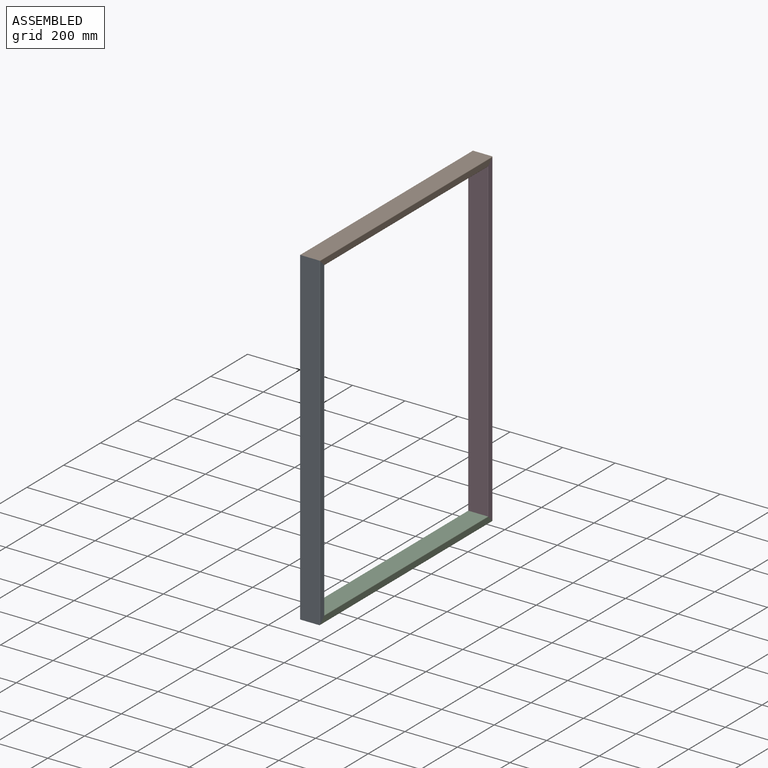
[diagram: assembled view]
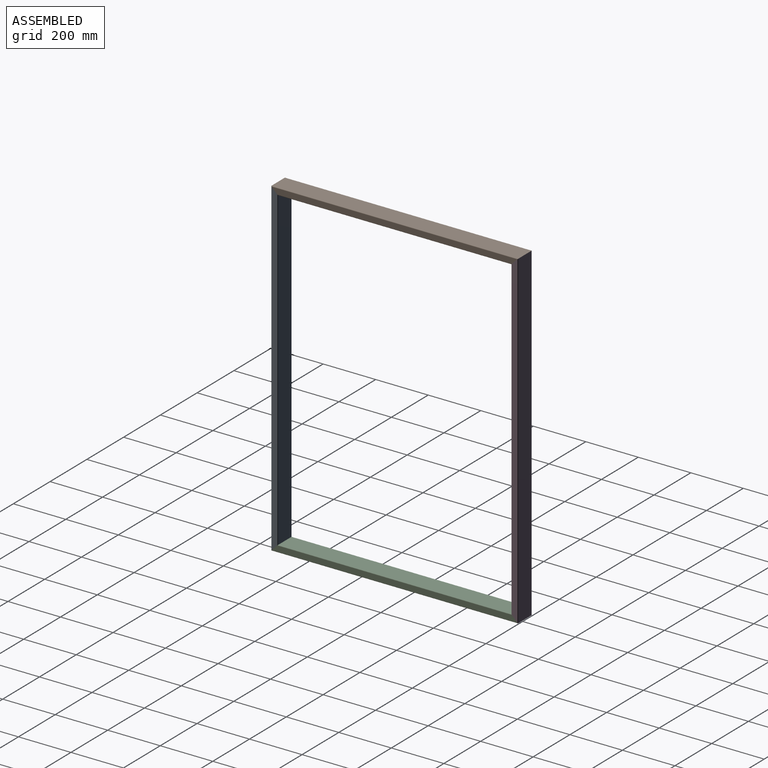
[diagram: assembled view, second angle]
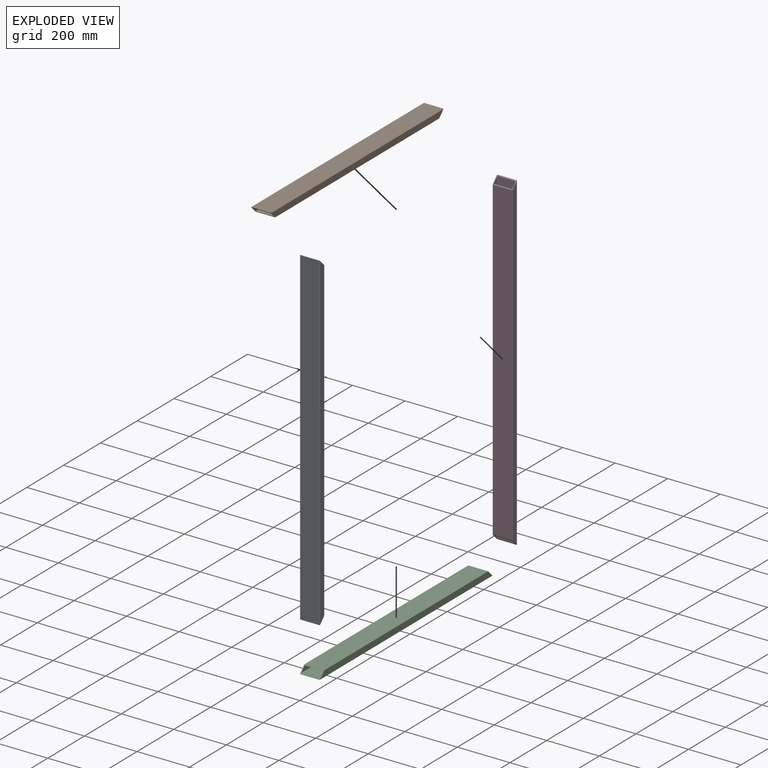
[diagram: exploded view]
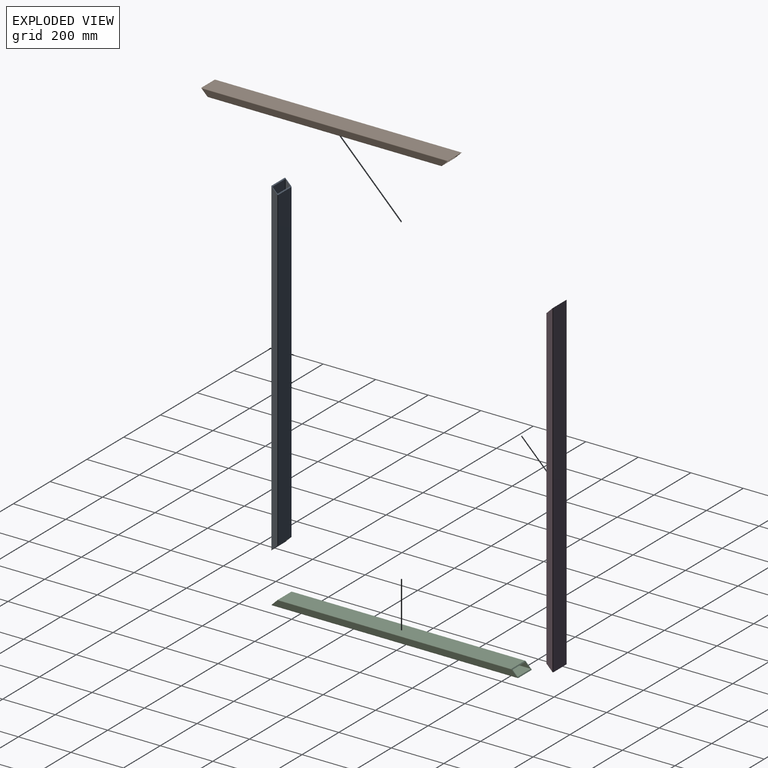
[diagram: exploded view, second angle]
ASSEMBLY  parts=4 mates=3
PART A: 18 faces, bbox 76.2x1255x25.4 mm
  f0: cylinder r=1.91mm len=1208.01mm, axis (0,-1,0), area 3607.6mm2, adj f2,f6,f8,f9
  f1: cylinder r=1.91mm len=1255mm, axis (0,-1,0), area 3751.3mm2, adj f2,f7,f8,f9
  f2: plane 1251.19x21.59mm, normal (1,0,0), area 26547.1mm2, adj f0,f1,f8,f9
  f3: cylinder r=1.91mm len=1255mm, axis (0,-1,0), area 3751.3mm2, adj f4,f7,f8,f9
  f4: plane 1251.19x21.59mm, normal (-1,0,0), area 26547.1mm2, adj f3,f5,f8,f9
  f5: cylinder r=1.91mm len=1208.01mm, axis (0,-1,0), area 3607.6mm2, adj f4,f6,f8,f9
  f6: plane 1204.2x72.39mm, normal (0,0,1), area 87172mm2, adj f0,f5,f8,f9
  f7: plane 1255x72.39mm, normal (0,0,-1), area 90849.4mm2, adj f1,f3,f8,f9
  f8: plane 76.2x25.4mm, normal (0,0.71,0.71), area 823.3mm2, adj f0,f1,f2,f3,f4,f5,f6,f7
  f9: plane 76.2x25.4mm, normal (0,-0.71,0.71), area 823.3mm2, adj f0,f1,f2,f3,f4,f5,f6,f7
  f10: cylinder r=1.91mm len=1214.11mm, axis (0,-1,0), area 3625.8mm2, adj f8,f9,f11,f17
  f11: plane 1210.3x66.29mm, normal (0,0,-1), area 80235.4mm2, adj f8,f9,f10,f12
  f12: cylinder r=1.91mm len=1214.11mm, axis (0,-1,0), area 3625.8mm2, adj f8,f9,f11,f13
  f13: plane 1245.09x15.49mm, normal (-1,0,0), area 19051.4mm2, adj f8,f9,f12,f14
  f14: cylinder r=1.91mm len=1248.9mm, axis (0,-1,0), area 3733mm2, adj f8,f9,f13,f15
  f15: plane 1248.9x66.29mm, normal (0,0,1), area 82794.8mm2, adj f8,f9,f14,f16
  f16: cylinder r=1.91mm len=1248.9mm, axis (0,-1,0), area 3733mm2, adj f8,f9,f15,f17
  f17: plane 1245.09x15.49mm, normal (1,0,0), area 19051.4mm2, adj f8,f9,f10,f16
PART B: 18 faces, bbox 76.2x939.8x25.4 mm
  f0: cylinder r=1.91mm len=892.81mm, axis (0,-1,0), area 2664.4mm2, adj f2,f6,f8,f9
  f1: cylinder r=1.91mm len=939.8mm, axis (0,-1,0), area 2808.1mm2, adj f2,f7,f8,f9
  f2: plane 935.99x21.59mm, normal (1,0,0), area 19741.9mm2, adj f0,f1,f8,f9
  f3: cylinder r=1.91mm len=939.8mm, axis (0,-1,0), area 2808.1mm2, adj f4,f7,f8,f9
  f4: plane 935.99x21.59mm, normal (-1,0,0), area 19741.9mm2, adj f3,f5,f8,f9
  f5: cylinder r=1.91mm len=892.81mm, axis (0,-1,0), area 2664.4mm2, adj f4,f6,f8,f9
  f6: plane 889x72.39mm, normal (0,0,1), area 64354.7mm2, adj f0,f5,f8,f9
  f7: plane 939.8x72.39mm, normal (0,0,-1), area 68032.1mm2, adj f1,f3,f8,f9
  f8: plane 76.2x25.4mm, normal (0,0.71,0.71), area 823.3mm2, adj f0,f1,f2,f3,f4,f5,f6,f7
  f9: plane 76.2x25.4mm, normal (0,-0.71,0.71), area 823.3mm2, adj f0,f1,f2,f3,f4,f5,f6,f7
  f10: cylinder r=1.91mm len=898.91mm, axis (0,-1,0), area 2682.6mm2, adj f8,f9,f11,f17
  f11: plane 895.1x66.29mm, normal (0,0,-1), area 59339.5mm2, adj f8,f9,f10,f12
  f12: cylinder r=1.91mm len=898.91mm, axis (0,-1,0), area 2682.6mm2, adj f8,f9,f11,f13
  f13: plane 929.89x15.49mm, normal (-1,0,0), area 14167.7mm2, adj f8,f9,f12,f14
  f14: cylinder r=1.91mm len=933.7mm, axis (0,-1,0), area 2789.8mm2, adj f8,f9,f13,f15
  f15: plane 933.7x66.29mm, normal (0,0,1), area 61899mm2, adj f8,f9,f14,f16
  f16: cylinder r=1.91mm len=933.7mm, axis (0,-1,0), area 2789.8mm2, adj f8,f9,f15,f17
  f17: plane 929.89x15.49mm, normal (1,0,0), area 14167.7mm2, adj f8,f9,f10,f16
PART C: same geometry as B
PART D: same geometry as A
PLACE A rot(axis=(0,-0.71,-0.71),180deg) t=(-44.41,-469.56,-360.06)mm
PLACE B rot(axis=(1,0,0),180deg) t=(-44.41,457.54,882.24)mm
PLACE C t=(-44.41,-482.26,-347.36)mm
PLACE D rot(axis=(0,-0.71,0.71),180deg) t=(-44.41,444.84,894.94)mm
MATE fastened B.f9 <-> D.f9  axis (0,0.71,-0.71) through (-44.41,444.84,882.24)mm
MATE fastened A.f9 <-> C.f9  axis (0,0.71,-0.71) through (-44.41,-469.56,-347.36)mm
MATE fastened D.f8 <-> C.f8  axis (0,-0.71,-0.71) through (-44.41,444.84,-347.36)mm
